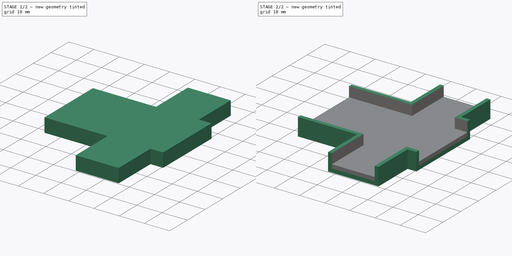
[diagram: build sequence overview — one tinted view per stage of 2, left to right]
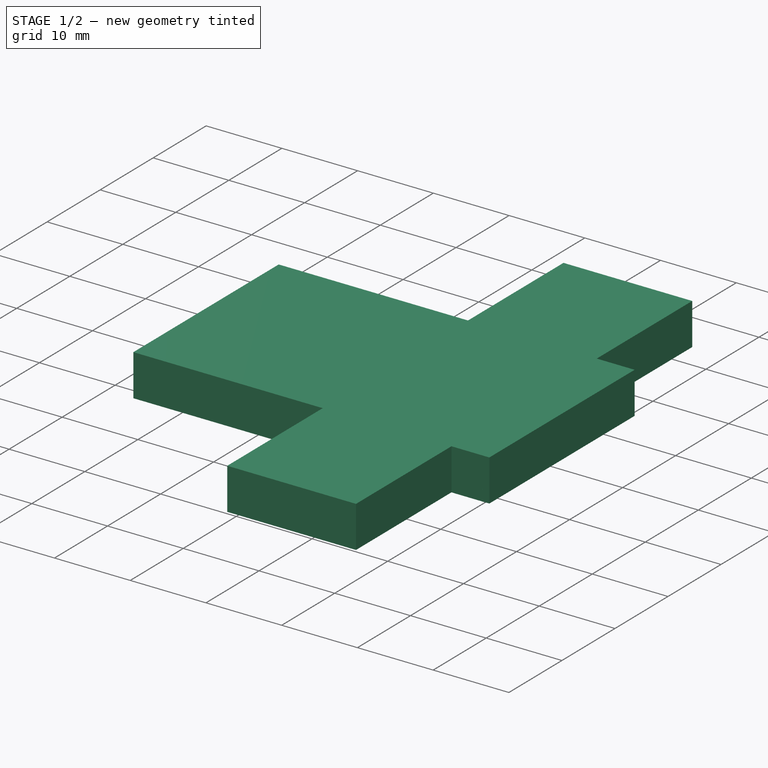
[diagram: stage 1 of 2 — iso view after this stage's code; geometry added in this stage tinted green]
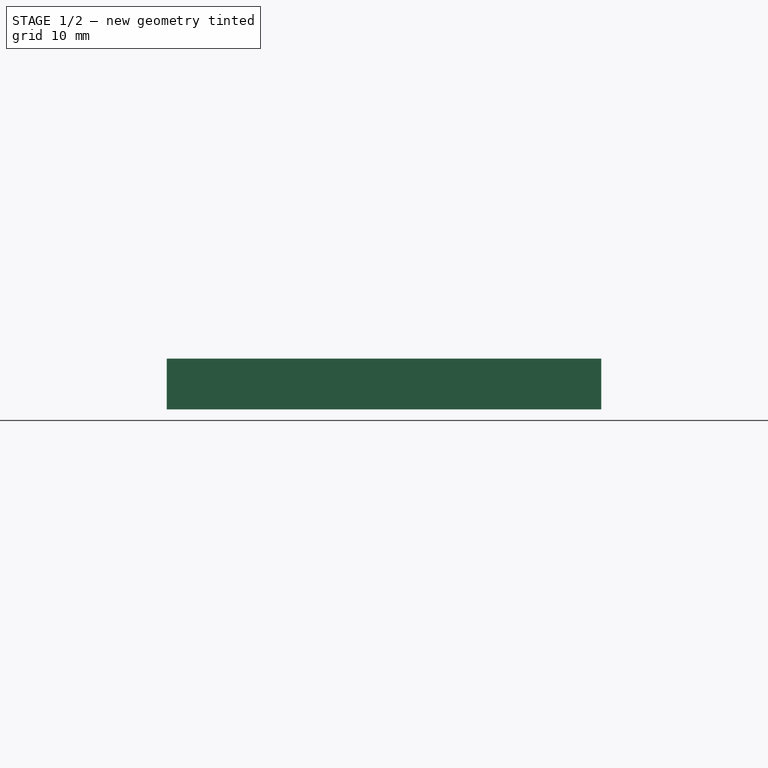
[diagram: stage 1 of 2 — front view after this stage's code; geometry added in this stage tinted green]
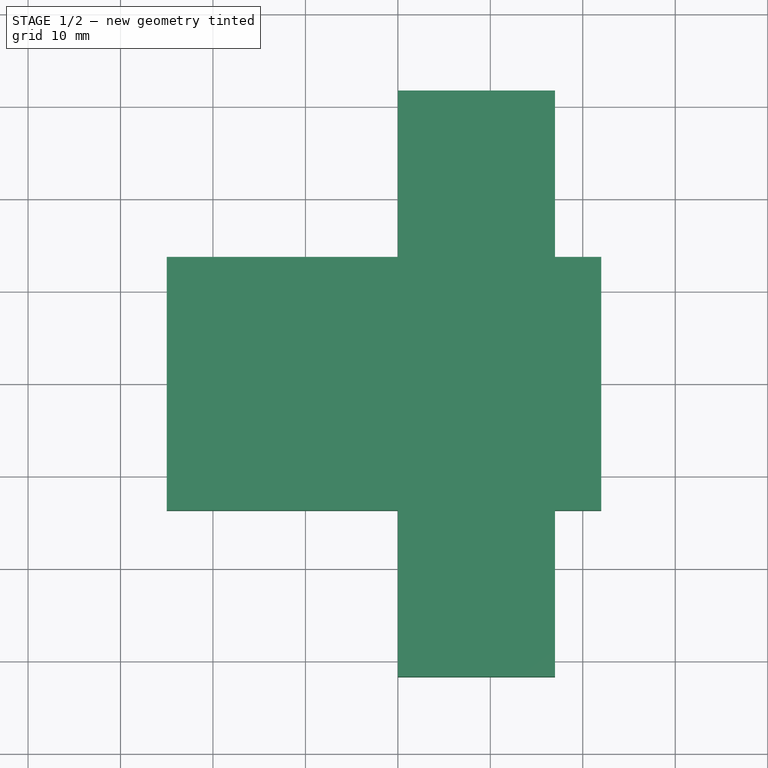
[diagram: stage 1 of 2 — top view after this stage's code; geometry added in this stage tinted green]
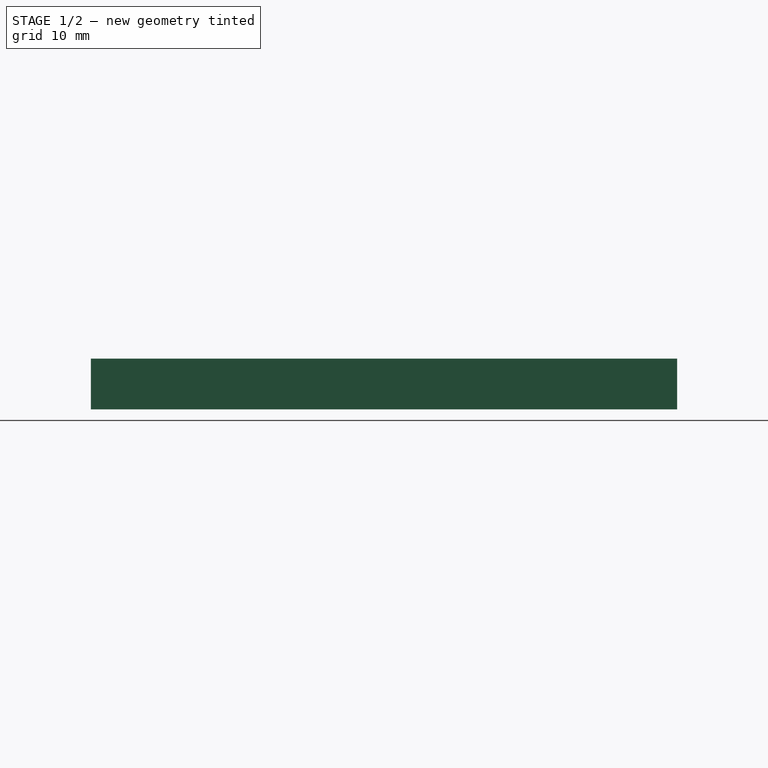
[diagram: stage 1 of 2 — right view after this stage's code; geometry added in this stage tinted green]
FCSTD DOCUMENT  (FreeCAD 0.19R20310 (Git))
Label: fix
License: All rights reserved
LicenseURL: http://en.wikipedia.org/wiki/All_rights_reserved
objects: Sketcher::SketchObject×2, PartDesign::Pad×2, PartDesign::Body×2, PartDesign::Thickness×1
note: 10 computed .brp shape members not serialized (recipe doc carries the construction recipe); baked Part::Feature solids carry a one-line shape summary decoded from their .brp

FEATURE [Sketcher::SketchObject] Sketch
  MapMode = 5
  Support = -> [XY_Plane]
  sketch-geometry (12):
    g0: LineSegment StartX=-25 StartY=-13.7 StartZ=0 EndX=-25 EndY=13.7 EndZ=0
    g1: LineSegment StartX=-25 StartY=13.7 StartZ=0 EndX=0 EndY=13.7 EndZ=0
    g2: LineSegment StartX=0 StartY=13.7 StartZ=0 EndX=0 EndY=31.7 EndZ=0
    g3: LineSegment StartX=0 StartY=31.7 StartZ=0 EndX=17 EndY=31.7 EndZ=0
    g4: LineSegment StartX=17 StartY=31.7 StartZ=0 EndX=17 EndY=13.7 EndZ=0
    g5: LineSegment StartX=17 StartY=13.7 StartZ=0 EndX=22 EndY=13.7 EndZ=0
    g6: LineSegment StartX=22 StartY=13.7 StartZ=0 EndX=22 EndY=-13.7 EndZ=0
    g7: LineSegment StartX=-25 StartY=-13.7 StartZ=0 EndX=0 EndY=-13.7 EndZ=0
    g8: LineSegment StartX=0 StartY=-13.7 StartZ=0 EndX=0 EndY=-31.7 EndZ=0
    g9: LineSegment StartX=0 StartY=-31.7 StartZ=0 EndX=17 EndY=-31.7 EndZ=0
    g10: LineSegment StartX=17 StartY=-31.7 StartZ=0 EndX=17 EndY=-13.7 EndZ=0
    g11: LineSegment StartX=17 StartY=-13.7 StartZ=0 EndX=22 EndY=-13.7 EndZ=0
  constraints (33):
    c: Vertical(g0)
    c: Coincident(g0,g1)
    c: PointOnObject(g1,g-2)
    c: Horizontal(g1)
    c: Coincident(g1,g2)
    c: PointOnObject(g2,g-2)
    c: Coincident(g2,g3)
    c: Horizontal(g3)
    c: Coincident(g3,g4)
    c: Vertical(g4)
    c: Coincident(g4,g5)
    c: Horizontal(g5)
    c: Coincident(g5,g6)
    c: Vertical(g6)
    c: Coincident(g0,g7)
    c: Horizontal(g7)
    c: Coincident(g7,g8)
    c: PointOnObject(g8,g-2)
    c: Coincident(g8,g9)
    c: Horizontal(g9)
    c: Coincident(g9,g10)
    c: Coincident(g10,g11)
    c: Coincident(g11,g6)
    c: Horizontal(g11)
    c: Symmetric(g1,g7,g-1)
    c: Symmetric(g10,g4,g-1)
    c: Symmetric(g3,g9,g-1)
    c: DistanceY(g0,g0) = 27.4
    c: Horizontal(g1,g4)
    c: DistanceX(g1,g1) = 25
    c: DistanceX(g3,g3) = 17
    c: DistanceY(g4,g4) = 18
    c: DistanceX(g5,g5) = 5
FEATURE [PartDesign::Pad] Pad
  Length = 5.5
  Length2 = 100
  Profile = -> Sketch
  Type = 0
FEATURE [PartDesign::Body] Body
  Group = -> [Sketch,Pad,Thickness]
  Origin = -> Origin
  Tip = -> Thickness
FEATURE [Sketcher::SketchObject] Sketch001
  MapMode = 5
  sketch-geometry (12):
    g0: LineSegment StartX=-25 StartY=-13.7 StartZ=0 EndX=-25 EndY=13.7 EndZ=0
    g1: LineSegment StartX=-25 StartY=13.7 StartZ=0 EndX=0 EndY=13.7 EndZ=0
    g2: LineSegment StartX=0 StartY=13.7 StartZ=0 EndX=0 EndY=31.7 EndZ=0
    g3: LineSegment StartX=0 StartY=31.7 StartZ=0 EndX=17 EndY=31.7 EndZ=0
    g4: LineSegment StartX=17 StartY=31.7 StartZ=0 EndX=17 EndY=13.7 EndZ=0
    g5: LineSegment StartX=17 StartY=13.7 StartZ=0 EndX=22 EndY=13.7 EndZ=0
    g6: LineSegment StartX=22 StartY=13.7 StartZ=0 EndX=22 EndY=-13.7 EndZ=0
    g7: LineSegment StartX=-25 StartY=-13.7 StartZ=0 EndX=0 EndY=-13.7 EndZ=0
    g8: LineSegment StartX=0 StartY=-13.7 StartZ=0 EndX=0 EndY=-31.7 EndZ=0
    g9: LineSegment StartX=0 StartY=-31.7 StartZ=0 EndX=17 EndY=-31.7 EndZ=0
    g10: LineSegment StartX=17 StartY=-31.7 StartZ=0 EndX=17 EndY=-13.7 EndZ=0
    g11: LineSegment StartX=17 StartY=-13.7 StartZ=0 EndX=22 EndY=-13.7 EndZ=0
  constraints (33):
    c: Vertical(g0)
    c: Coincident(g0,g1)
    c: PointOnObject(g1,g-2)
    c: Horizontal(g1)
    c: Coincident(g1,g2)
    c: PointOnObject(g2,g-2)
    c: Coincident(g2,g3)
    c: Horizontal(g3)
    c: Coincident(g3,g4)
    c: Vertical(g4)
    c: Coincident(g4,g5)
    c: Horizontal(g5)
    c: Coincident(g5,g6)
    c: Vertical(g6)
    c: Coincident(g0,g7)
    c: Horizontal(g7)
    c: Coincident(g7,g8)
    c: PointOnObject(g8,g-2)
    c: Coincident(g8,g9)
    c: Horizontal(g9)
    c: Coincident(g9,g10)
    c: Coincident(g10,g11)
    c: Coincident(g11,g6)
    c: Horizontal(g11)
    c: Symmetric(g1,g7,g-1)
    c: Symmetric(g10,g4,g-1)
    c: Symmetric(g3,g9,g-1)
    c: DistanceY(g0,g0) = 27.4
    c: Horizontal(g1,g4)
    c: DistanceX(g1,g1) = 25
    c: DistanceX(g3,g3) = 17
    c: DistanceY(g4,g4) = 18
    c: DistanceX(g5,g5) = 5
FEATURE [PartDesign::Pad] Pad001
  Length = 1.5
  Length2 = 100
  Profile = -> Sketch001
  Type = 0
FEATURE [PartDesign::Body] Body001  label="Deckel"
  Group = -> [Pad001]
  Origin = -> Origin001
  Placement = pos=(0,0,4) rot=(0,0,1;0rad)
  Tip = -> Pad001
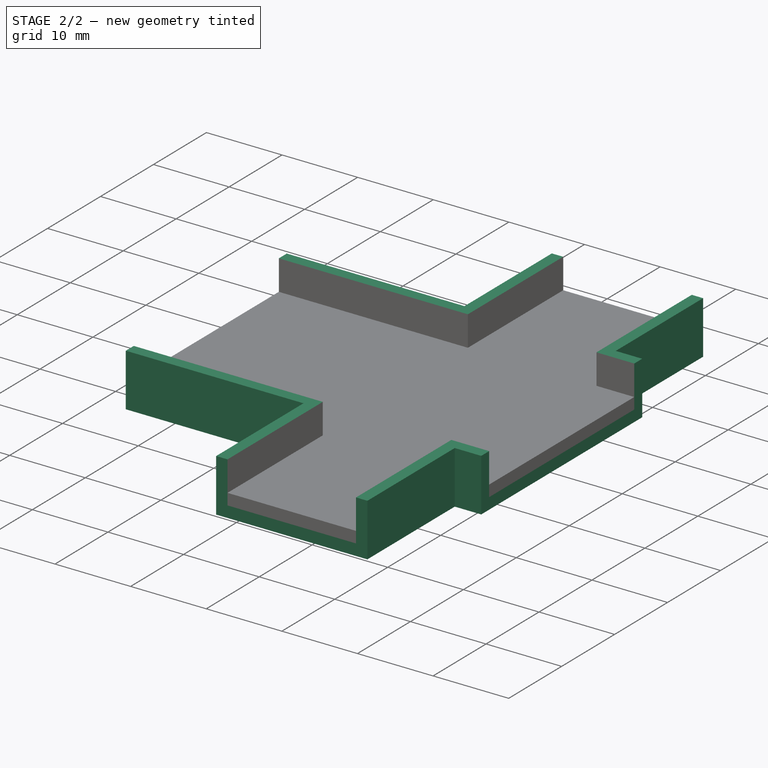
[diagram: stage 2 of 2 — iso view after this stage's code; geometry added in this stage tinted green]
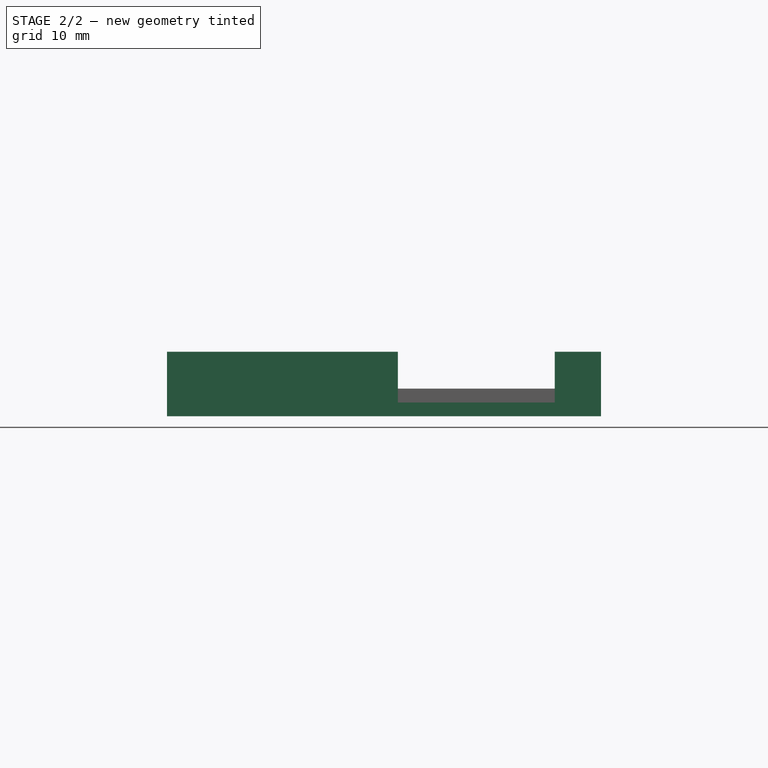
[diagram: stage 2 of 2 — front view after this stage's code; geometry added in this stage tinted green]
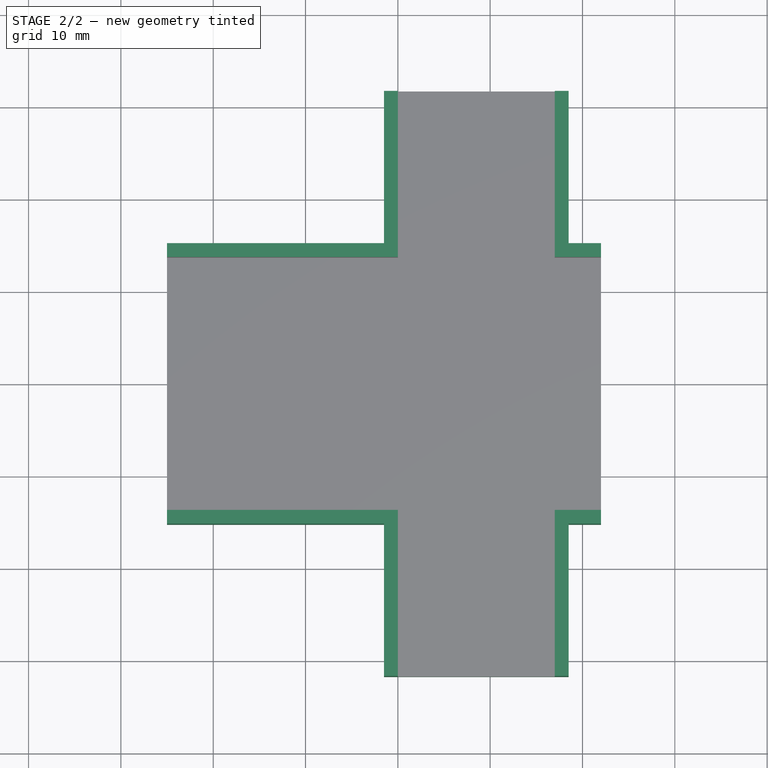
[diagram: stage 2 of 2 — top view after this stage's code; geometry added in this stage tinted green]
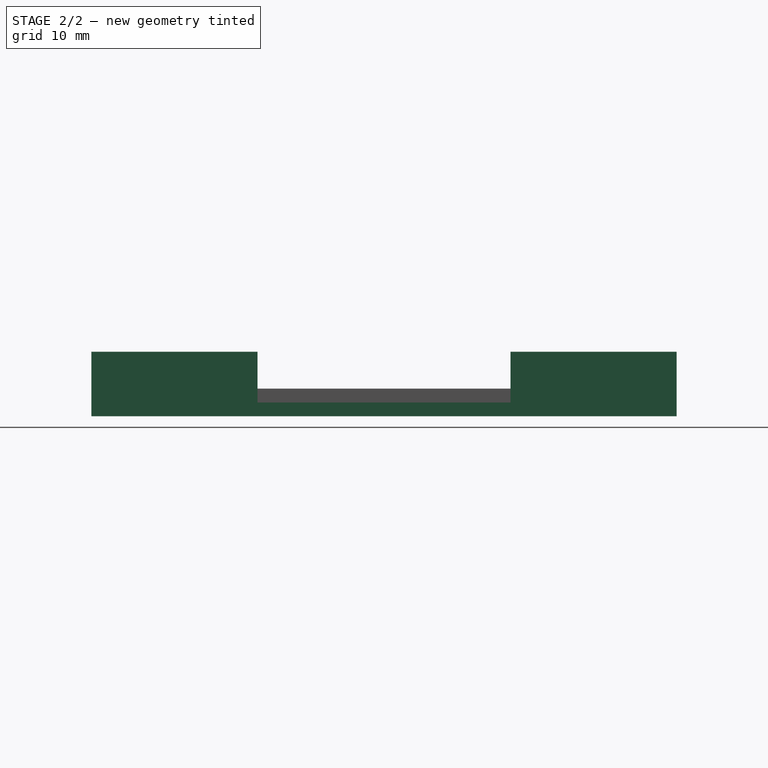
[diagram: stage 2 of 2 — right view after this stage's code; geometry added in this stage tinted green]
FEATURE [PartDesign::Thickness] Thickness
  Base = -> Pad [Face14,Face1,Face10,Face7,Face4]
  BaseFeature = -> Pad
  Intersection = false
  Join = 1
  Mode = 0
  SupportTransform = true
  Value = 1.5
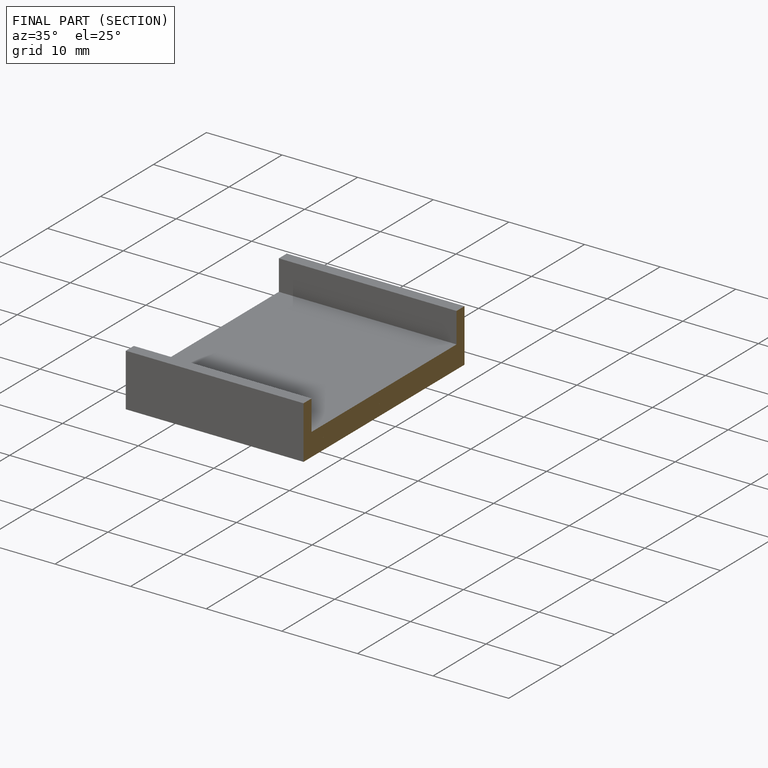
[diagram: finished part — half-section view (interior)]
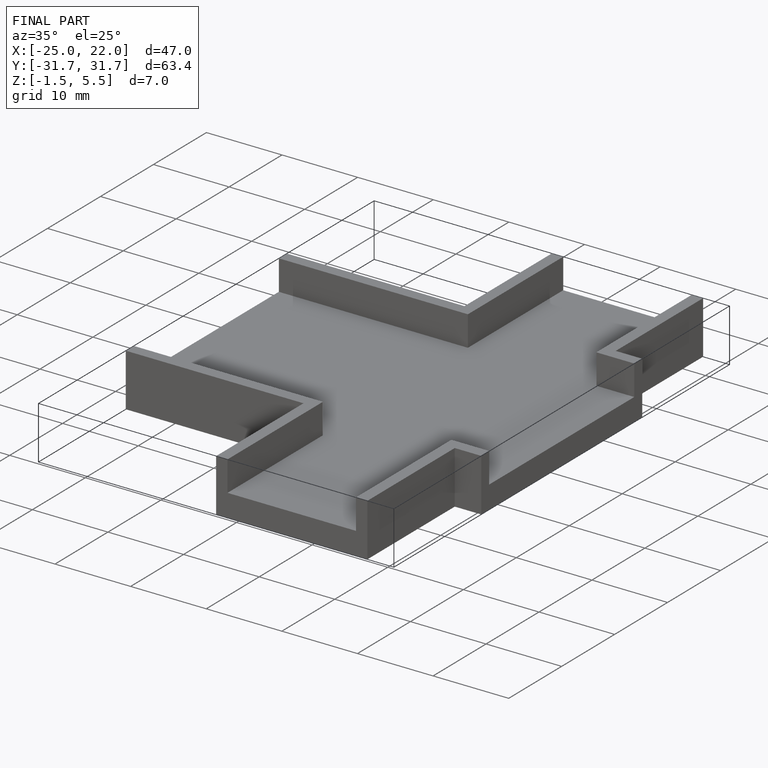
[diagram: finished part — iso view with bounding-box wireframe]
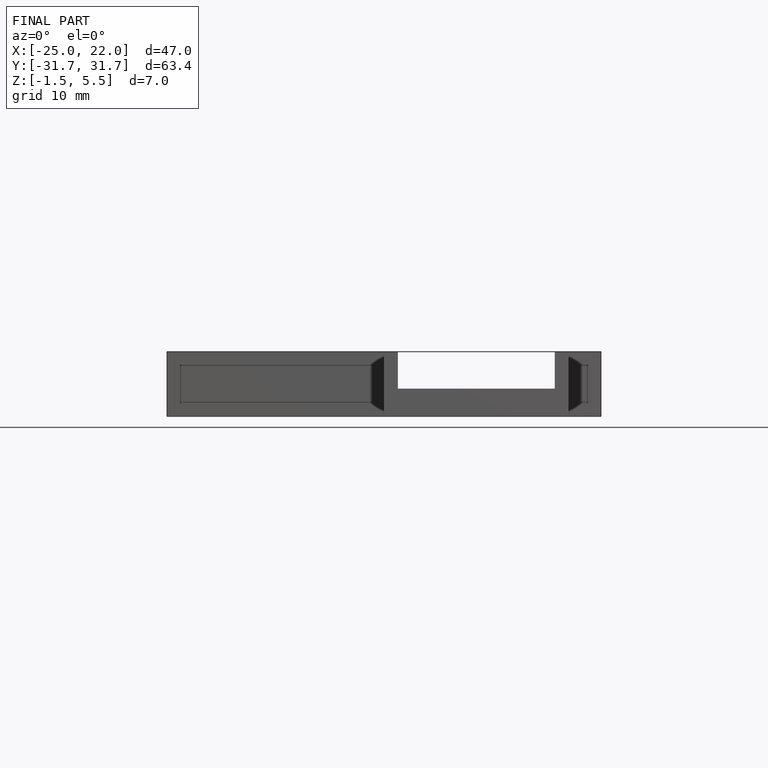
[diagram: finished part — front view with bounding-box wireframe]
